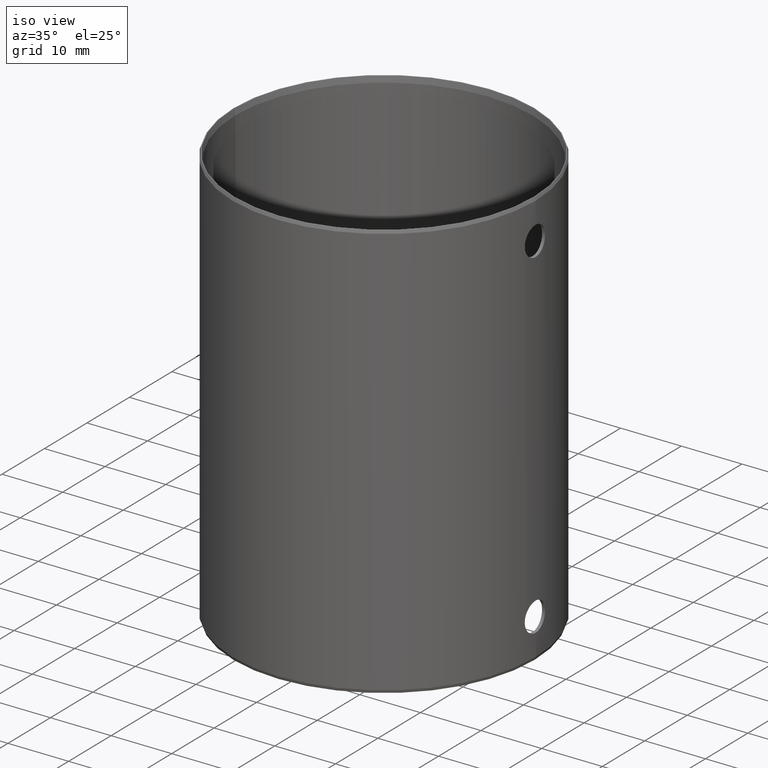
[diagram: clean part render]
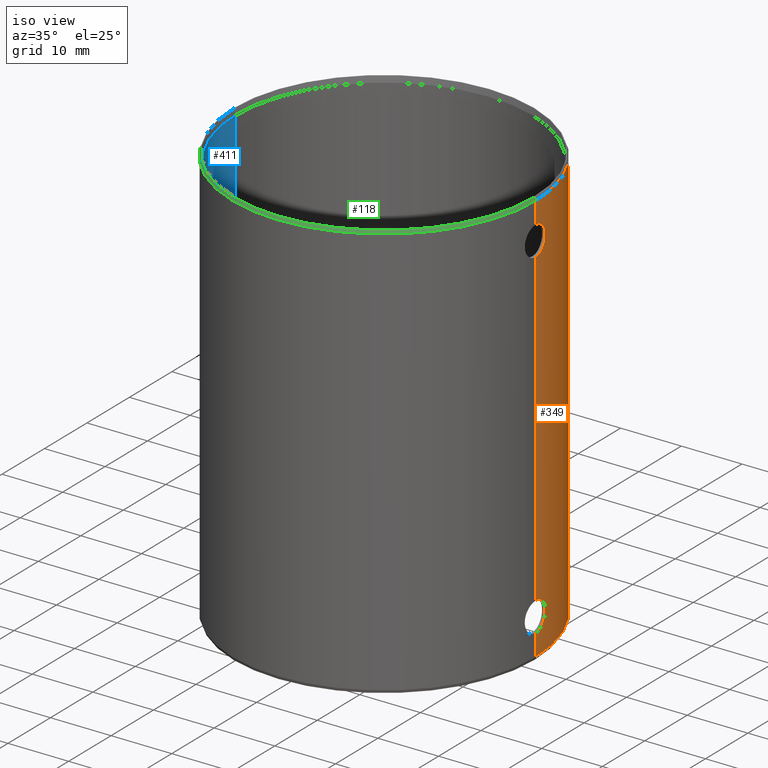
[diagram: same view with three faces highlighted in distinct colors, each labeled with its STEP entity id]
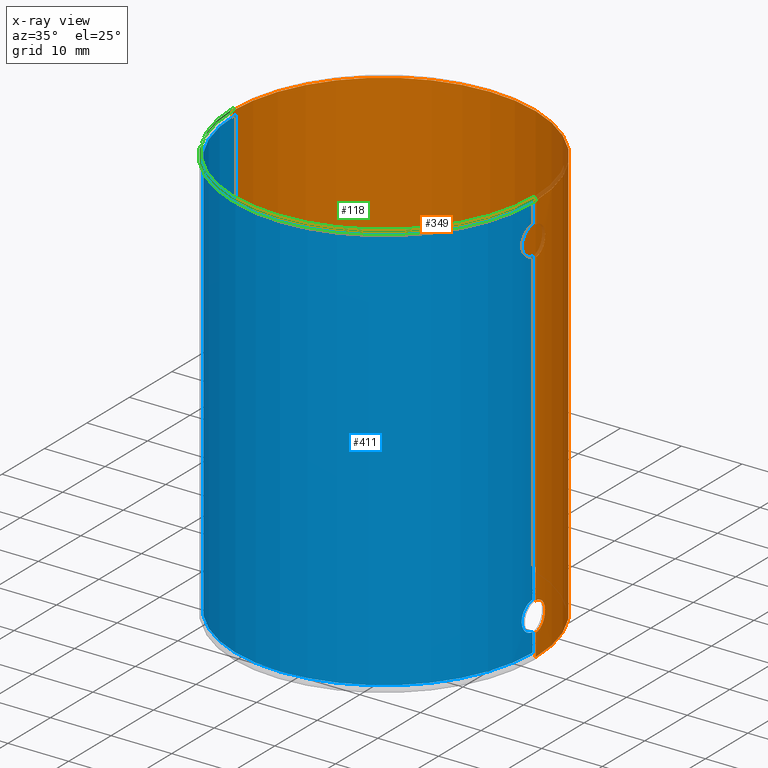
[diagram: x-ray of the same camera — body ghosted, the three highlighted faces saturated]
A machine part, iso view with three faces highlighted in distinct colors.
The next image is the same camera in x-ray (body ghosted, the three faces saturated) — at least one of them is partly hidden behind the body in this view.
Their STEP definitions:

[orange] entity #349 — the highlighted cylindrical surface (partial cylindrical patch) has radius 25 mm, axis along (-0, -0, -1).
#18 = CIRCLE ( 'NONE', #264, 25.00000000000000000 ) ;
#24 = CARTESIAN_POINT ( 'NONE',  ( 24.99852779915536900, 0.3123910132532942100, 4.115188051431481100 ) ) ;
#26 = CARTESIAN_POINT ( 'NONE',  ( 24.88452160933722700, 2.400121723904763600, 6.656665862864441500 ) ) ;
#31 = CARTESIAN_POINT ( 'NONE',  ( 24.92724166081458700, 1.907948605378058800, 5.035650817317736600 ) ) ;
#33 = CARTESIAN_POINT ( 'NONE',  ( 25.00000000000000000, 3.061617015060971000E-015, 60.10000000000000100 ) ) ;
#38 = CARTESIAN_POINT ( 'NONE',  ( 24.97770563932994000, 1.065398454173686100, 8.656234646903758500 ) ) ;
#39 = CARTESIAN_POINT ( 'NONE',  ( 24.91328647539418000, 2.082258795720676400, 61.29634526660252900 ) ) ;
#45 = CARTESIAN_POINT ( 'NONE',  ( 0.0000000000000000000, 0.0000000000000000000, 0.4999999999999726900 ) ) ;
#57 = VECTOR ( 'NONE', #728, 1000.000000000000000 ) ;
#60 = CARTESIAN_POINT ( 'NONE',  ( 25.00000000000000000, -7.960204194457795500E-016, 8.900000000000000400 ) ) ;
#70 = VERTEX_POINT ( 'NONE', #60 ) ;
#89 = CARTESIAN_POINT ( 'NONE',  ( 24.90680033869109900, 2.157531980925978800, 7.562927324292854100 ) ) ;
#96 = CARTESIAN_POINT ( 'NONE',  ( 24.89619328610674400, 2.276670028200189900, 61.72444238341019200 ) ) ;
#111 = DIRECTION ( 'NONE',  ( 1.000000000000000000, 0.0000000000000000000, 0.0000000000000000000 ) ) ;
#135 = CARTESIAN_POINT ( 'NONE',  ( 24.93488666603596100, 1.806581411025498500, 4.912317553406793100 ) ) ;
#142 = CARTESIAN_POINT ( 'NONE',  ( 24.99273967167542700, 0.6220482088764666100, 4.176646346112978100 ) ) ;
#148 = CARTESIAN_POINT ( 'NONE',  ( 24.88602797503628800, 2.384647443085708800, 62.81291804850886300 ) ) ;
#150 = CARTESIAN_POINT ( 'NONE',  ( 24.89185976614051700, 2.322985733890047500, 61.87694049442362900 ) ) ;
#168 = CARTESIAN_POINT ( 'NONE',  ( 24.91314775540727300, 2.083908987949354000, 63.70078858769549900 ) ) ;
#185 = CARTESIAN_POINT ( 'NONE',  ( 24.88452160933723100, 2.400121723904757900, 62.65666586286443600 ) ) ;
#188 = CARTESIAN_POINT ( 'NONE',  ( 24.88602797503628800, 2.384647443085714500, 6.812918048508857200 ) ) ;
#193 = CARTESIAN_POINT ( 'NONE',  ( 24.97128641964937400, 1.205016375846084600, 8.581538389534465200 ) ) ;
#195 = EDGE_CURVE ( 'NONE', #506, #440, #301, .T. ) ;
#202 = ORIENTED_EDGE ( 'NONE', *, *, #238, .F. ) ;
#207 = EDGE_CURVE ( 'NONE', #361, #552, #535, .T. ) ;
#208 = FACE_OUTER_BOUND ( 'NONE', #234, .T. ) ;
#213 = CARTESIAN_POINT ( 'NONE',  ( 25.00000000000000000, 3.061616997868383000E-015, 69.00000000000000000 ) ) ;
#223 = VERTEX_POINT ( 'NONE', #33 ) ;
#225 = CARTESIAN_POINT ( 'NONE',  ( 24.92708216892714300, 1.910021543429558900, 63.96163867150225700 ) ) ;
#231 = CARTESIAN_POINT ( 'NONE',  ( 24.97128641964937400, 1.205016375846076800, 64.58153838953445800 ) ) ;
#234 = EDGE_LOOP ( 'NONE', ( #353, #673, #369, #533, #202, #341, #263, #529 ) ) ;
#236 = CARTESIAN_POINT ( 'NONE',  ( 24.93472474480771000, 1.808807287848826600, 64.08515009080852600 ) ) ;
#238 = EDGE_CURVE ( 'NONE', #361, #70, #694, .T. ) ;
#239 = DIRECTION ( 'NONE',  ( -1.000000000000000000, 0.0000000000000000000, 0.0000000000000000000 ) ) ;
#249 = CARTESIAN_POINT ( 'NONE',  ( 24.89177715393288200, 2.323867879430600700, 7.119757381439341300 ) ) ;
#257 = CARTESIAN_POINT ( 'NONE',  ( 24.92708216892713900, 1.910021543429563300, 7.961638671502244700 ) ) ;
#263 = ORIENTED_EDGE ( 'NONE', *, *, #469, .T. ) ;
#264 = AXIS2_PLACEMENT_3D ( 'NONE', #461, #466, #725 ) ;
#269 = CARTESIAN_POINT ( 'NONE',  ( 25.00000000000000000, 3.061616997868383000E-015, 0.4999999999999726900 ) ) ;
#270 = CARTESIAN_POINT ( 'NONE',  ( 25.00000000000000000, 3.061616997868383000E-015, 69.00000000000000000 ) ) ;
#276 = EDGE_CURVE ( 'NONE', #223, #406, #448, .T. ) ;
#301 = LINE ( 'NONE', #449, #430 ) ;
#305 = CARTESIAN_POINT ( 'NONE',  ( 25.00000000000000000, -6.938893903907228400E-015, 64.90000000000000600 ) ) ;
#324 = CARTESIAN_POINT ( 'NONE',  ( 24.99366688715195700, 0.6324768918812916400, 8.836163490830976700 ) ) ;
#327 = CARTESIAN_POINT ( 'NONE',  ( 24.98844668141205700, 0.7735741257863489900, 60.22271791991430200 ) ) ;
#329 = CARTESIAN_POINT ( 'NONE',  ( 24.99999999999998900, 0.3172695563085066700, 8.899999999999996800 ) ) ;
#331 = CARTESIAN_POINT ( 'NONE',  ( 25.00000000000000000, 3.061617015060971000E-015, 60.10000000000000100 ) ) ;
#341 = ORIENTED_EDGE ( 'NONE', *, *, #207, .T. ) ;
#343 = CARTESIAN_POINT ( 'NONE',  ( -25.00000000000000000, 0.0000000000000000000, 0.4999999999999726900 ) ) ;
#346 = CARTESIAN_POINT ( 'NONE',  ( 25.00000000000000000, 3.061616997868383000E-015, 68.50000000000002800 ) ) ;
#347 = DIRECTION ( 'NONE',  ( -0.0000000000000000000, -0.0000000000000000000, 1.000000000000000000 ) ) ;
#349 = ADVANCED_FACE ( 'NONE', ( #208 ), #405, .T. ) ;
#353 = ORIENTED_EDGE ( 'NONE', *, *, #532, .T. ) ;
#358 = AXIS2_PLACEMENT_3D ( 'NONE', #45, #347, #111 ) ;
#361 = VERTEX_POINT ( 'NONE', #756 ) ;
#364 = CARTESIAN_POINT ( 'NONE',  ( 24.89608564858516400, 2.277842562262350200, 63.27213470780221600 ) ) ;
#369 = ORIENTED_EDGE ( 'NONE', *, *, #276, .F. ) ;
#376 = CIRCLE ( 'NONE', #358, 25.00000000000000000 ) ;
#379 = CARTESIAN_POINT ( 'NONE',  ( 25.00000000000000400, 0.1566443434529316300, 4.099999999999998800 ) ) ;
#380 = CARTESIAN_POINT ( 'NONE',  ( 24.89185976614051300, 2.322985733890050600, 5.876940494423617900 ) ) ;
#383 = DIRECTION ( 'NONE',  ( -0.0000000000000000000, -0.0000000000000000000, -1.000000000000000000 ) ) ;
#390 = CARTESIAN_POINT ( 'NONE',  ( 25.00000000000000000, 3.061616997868383000E-015, 69.00000000000000000 ) ) ;
#396 = CARTESIAN_POINT ( 'NONE',  ( 24.95746531117464100, 1.474504327697439000, 60.58069680062431700 ) ) ;
#398 = CARTESIAN_POINT ( 'NONE',  ( 24.88454522685664800, 2.399876844268713100, 62.33962664033745700 ) ) ;
#405 = CYLINDRICAL_SURFACE ( 'NONE', #760, 25.00000000000000000 ) ;
#406 = VERTEX_POINT ( 'NONE', #305 ) ;
#418 = CARTESIAN_POINT ( 'NONE',  ( 25.00000000000000000, -6.938893903907228400E-015, 64.90000000000000600 ) ) ;
#422 = CARTESIAN_POINT ( 'NONE',  ( 24.94978116682852900, 1.587671764335767000, 64.30659430523188300 ) ) ;
#425 = DIRECTION ( 'NONE',  ( -0.0000000000000000000, -0.0000000000000000000, -1.000000000000000000 ) ) ;
#428 = CARTESIAN_POINT ( 'NONE',  ( 24.95726503561599700, 1.467014608053332600, 64.40597341873413500 ) ) ;
#430 = VECTOR ( 'NONE', #772, 1000.000000000000000 ) ;
#436 = CARTESIAN_POINT ( 'NONE',  ( 24.97252710090108600, 1.206825632060222200, 4.402073810815897700 ) ) ;
#437 = EDGE_CURVE ( 'NONE', #766, #406, #765, .T. ) ;
#440 = VERTEX_POINT ( 'NONE', #343 ) ;
#445 = CARTESIAN_POINT ( 'NONE',  ( 24.89608564858515600, 2.277842562262359900, 7.272134707802201200 ) ) ;
#448 = B_SPLINE_CURVE_WITH_KNOTS ( 'NONE', 3,
 ( #331, #451, #719, #587, #327, #778, #396, #522, #655, #39, #456, #96, #150, #590, #398, #185, #148, #779, #364, #746, #168, #225, #236, #422, #428, #231, #744, #559, #629, #418 ),
 .UNSPECIFIED., .F., .F.,
 ( 4, 2, 2, 2, 2, 2, 2, 2, 2, 2, 2, 2, 2, 2, 4 ),
 ( 0.007507814595347489900, 0.007976943279591804800, 0.008446071963836119700, 0.009384329332324740900, 0.009853458016569043700, 0.01032258670081334700, 0.01079171538505764900, 0.01126084406930195200, 0.01172997275354625500, 0.01219910143779055800, 0.01266823012203486200, 0.01313735880627916500, 0.01360648749052346800, 0.01407561617476777200, 0.01501387354325637800 ),
 .UNSPECIFIED. ) ;
#449 = CARTESIAN_POINT ( 'NONE',  ( -25.00000000000000000, 0.0000000000000000000, 69.00000000000000000 ) ) ;
#451 = CARTESIAN_POINT ( 'NONE',  ( 25.00000000000000400, 0.1566443434529314100, 60.09999999999999400 ) ) ;
#452 = CARTESIAN_POINT ( 'NONE',  ( 24.94978116682852600, 1.587671764335780300, 8.306594305231847400 ) ) ;
#453 = VECTOR ( 'NONE', #665, 1000.000000000000000 ) ;
#456 = CARTESIAN_POINT ( 'NONE',  ( 24.90692968817593600, 2.156042686208175900, 61.43407506399196200 ) ) ;
#461 = CARTESIAN_POINT ( 'NONE',  ( 0.0000000000000000000, 0.0000000000000000000, 68.50000000000002800 ) ) ;
#466 = DIRECTION ( 'NONE',  ( 0.0000000000000000000, 0.0000000000000000000, -1.000000000000000000 ) ) ;
#469 = EDGE_CURVE ( 'NONE', #552, #440, #376, .T. ) ;
#471 = CARTESIAN_POINT ( 'NONE',  ( -25.00000000000000000, 0.0000000000000000000, 68.50000000000002800 ) ) ;
#506 = VERTEX_POINT ( 'NONE', #471 ) ;
#507 = CARTESIAN_POINT ( 'NONE',  ( 24.95746531117462700, 1.474504327697435400, 4.580696800624287400 ) ) ;
#511 = CARTESIAN_POINT ( 'NONE',  ( 24.91328647539417300, 2.082258795720679500, 5.296345266602520100 ) ) ;
#518 = LINE ( 'NONE', #270, #57 ) ;
#522 = CARTESIAN_POINT ( 'NONE',  ( 24.93488666603596100, 1.806581411025500700, 60.91231755340679400 ) ) ;
#523 = CARTESIAN_POINT ( 'NONE',  ( 24.93472474480770600, 1.808807287848838200, 8.085150090808488300 ) ) ;
#529 = ORIENTED_EDGE ( 'NONE', *, *, #195, .F. ) ;
#532 = EDGE_CURVE ( 'NONE', #506, #766, #18, .T. ) ;
#533 = ORIENTED_EDGE ( 'NONE', *, *, #696, .T. ) ;
#535 = LINE ( 'NONE', #390, #794 ) ;
#552 = VERTEX_POINT ( 'NONE', #269 ) ;
#557 = CARTESIAN_POINT ( 'NONE',  ( 0.0000000000000000000, 0.0000000000000000000, 69.00000000000000000 ) ) ;
#559 = CARTESIAN_POINT ( 'NONE',  ( 24.99366688715195300, 0.6324768918812896400, 64.83616349083098400 ) ) ;
#575 = CARTESIAN_POINT ( 'NONE',  ( 24.90692968817593200, 2.156042686208177200, 5.434075063991946000 ) ) ;
#578 = CARTESIAN_POINT ( 'NONE',  ( 24.98844668141205400, 0.7735741257863501000, 4.222717919914306800 ) ) ;
#587 = CARTESIAN_POINT ( 'NONE',  ( 24.99273967167542000, 0.6220482088764672800, 60.17664634611295300 ) ) ;
#590 = CARTESIAN_POINT ( 'NONE',  ( 24.88607061142255400, 2.384205289053846300, 62.18372321142167200 ) ) ;
#629 = CARTESIAN_POINT ( 'NONE',  ( 24.99999999999999300, 0.3172695563085008400, 64.89999999999999100 ) ) ;
#642 = CARTESIAN_POINT ( 'NONE',  ( 24.89619328610674700, 2.276670028200192200, 5.724442383410184300 ) ) ;
#652 = CARTESIAN_POINT ( 'NONE',  ( 24.91314775540727300, 2.083908987949359700, 7.700788587695509300 ) ) ;
#655 = CARTESIAN_POINT ( 'NONE',  ( 24.92724166081459100, 1.907948605378055900, 61.03565081731775200 ) ) ;
#665 = DIRECTION ( 'NONE',  ( -0.0000000000000000000, -0.0000000000000000000, -1.000000000000000000 ) ) ;
#673 = ORIENTED_EDGE ( 'NONE', *, *, #437, .T. ) ;
#694 = B_SPLINE_CURVE_WITH_KNOTS ( 'NONE', 3,
 ( #761, #379, #24, #142, #578, #436, #507, #135, #31, #511, #575, #642, #380, #705, #763, #26, #188, #249, #445, #89, #652, #257, #523, #452, #716, #193, #38, #324, #329, #775 ),
 .UNSPECIFIED., .F., .F.,
 ( 4, 2, 2, 2, 2, 2, 2, 2, 2, 2, 2, 2, 2, 2, 4 ),
 ( 0.007507814595347481200, 0.007976943279591787500, 0.008446071963836093700, 0.009384329332324706200, 0.009853458016569010800, 0.01032258670081331500, 0.01079171538505762000, 0.01126084406930192400, 0.01172997275354623100, 0.01219910143779053300, 0.01266823012203484000, 0.01313735880627914200, 0.01360648749052344700, 0.01407561617476775100, 0.01501387354325635700 ),
 .UNSPECIFIED. ) ;
#696 = EDGE_CURVE ( 'NONE', #223, #70, #518, .T. ) ;
#705 = CARTESIAN_POINT ( 'NONE',  ( 24.88607061142256400, 2.384205289053852500, 6.183723211421667400 ) ) ;
#716 = CARTESIAN_POINT ( 'NONE',  ( 24.95726503561599700, 1.467014608053339700, 8.405973418734134800 ) ) ;
#719 = CARTESIAN_POINT ( 'NONE',  ( 24.99852779915536500, 0.3123910132532947100, 60.11518805143146700 ) ) ;
#725 = DIRECTION ( 'NONE',  ( 1.000000000000000000, 0.0000000000000000000, 0.0000000000000000000 ) ) ;
#728 = DIRECTION ( 'NONE',  ( -0.0000000000000000000, -0.0000000000000000000, -1.000000000000000000 ) ) ;
#744 = CARTESIAN_POINT ( 'NONE',  ( 24.97770563932994000, 1.065398454173683200, 64.65623464690375500 ) ) ;
#746 = CARTESIAN_POINT ( 'NONE',  ( 24.90680033869110200, 2.157531980925967200, 63.56292732429286500 ) ) ;
#756 = CARTESIAN_POINT ( 'NONE',  ( 25.00000000000000000, 3.061617015062548800E-015, 4.099999999999999600 ) ) ;
#760 = AXIS2_PLACEMENT_3D ( 'NONE', #557, #425, #239 ) ;
#761 = CARTESIAN_POINT ( 'NONE',  ( 25.00000000000000000, 3.061617015062548800E-015, 4.099999999999999600 ) ) ;
#763 = CARTESIAN_POINT ( 'NONE',  ( 24.88454522685665200, 2.399876844268717900, 6.339626640337451500 ) ) ;
#765 = LINE ( 'NONE', #213, #453 ) ;
#766 = VERTEX_POINT ( 'NONE', #346 ) ;
#772 = DIRECTION ( 'NONE',  ( -0.0000000000000000000, -0.0000000000000000000, -1.000000000000000000 ) ) ;
#775 = CARTESIAN_POINT ( 'NONE',  ( 25.00000000000000000, -7.960204194457795500E-016, 8.900000000000000400 ) ) ;
#778 = CARTESIAN_POINT ( 'NONE',  ( 24.97252710090109000, 1.206825632060220600, 60.40207381081591400 ) ) ;
#779 = CARTESIAN_POINT ( 'NONE',  ( 24.89177715393287500, 2.323867879430594500, 63.11975738143934900 ) ) ;
#794 = VECTOR ( 'NONE', #383, 1000.000000000000000 ) ;

[blue] entity #411 — the highlighted cylindrical surface (partial cylindrical patch) has radius 24.5 mm, axis along (-0, -0, -1).
#3 = CARTESIAN_POINT ( 'NONE',  ( 24.42580354938601100, -1.907319449440138600, 7.965276881055341800 ) ) ;
#4 = EDGE_CURVE ( 'NONE', #658, #528, #501, .T. ) ;
#5 = VECTOR ( 'NONE', #476, 1000.000000000000000 ) ;
#9 = CARTESIAN_POINT ( 'NONE',  ( 24.38859995734895500, -2.336800860100901400, 7.130151552191206200 ) ) ;
#11 = CARTESIAN_POINT ( 'NONE',  ( 24.47082005790156200, -1.202507692141337600, 64.58292347193727800 ) ) ;
#12 = CARTESIAN_POINT ( 'NONE',  ( 24.45660832682248700, -1.463341451696374300, 64.40872384994622700 ) ) ;
#15 = CARTESIAN_POINT ( 'NONE',  ( 24.49844755136555500, -0.3158348504575804700, 60.11570415887334200 ) ) ;
#17 = EDGE_CURVE ( 'NONE', #528, #645, #641, .T. ) ;
#19 = VERTEX_POINT ( 'NONE', #29 ) ;
#29 = CARTESIAN_POINT ( 'NONE',  ( -24.50000000000000000, 0.0000000000000000000, 1.000000000000042600 ) ) ;
#44 = CARTESIAN_POINT ( 'NONE',  ( 24.50000000000000000, 3.000384657911015500E-015, 69.00000000000000000 ) ) ;
#50 = DIRECTION ( 'NONE',  ( 1.000000000000000000, 0.0000000000000000000, 0.0000000000000000000 ) ) ;
#52 = CARTESIAN_POINT ( 'NONE',  ( 24.50000000000000000, 3.000384657911015500E-015, 68.00000000000015600 ) ) ;
#53 = CARTESIAN_POINT ( 'NONE',  ( -24.50000000000000000, 0.0000000000000000000, 68.00000000000015600 ) ) ;
#54 = CARTESIAN_POINT ( 'NONE',  ( 24.50000000000000000, -7.960204194457795500E-016, 8.900000000000000400 ) ) ;
#61 = CARTESIAN_POINT ( 'NONE',  ( 24.41146949563054100, -2.082763447756365200, 7.702913230893200200 ) ) ;
#64 = CARTESIAN_POINT ( 'NONE',  ( 24.38859995734896600, -2.336800860100908500, 63.13015155219122200 ) ) ;
#66 = CARTESIAN_POINT ( 'NONE',  ( 24.49254669009270200, -0.6235709369443246400, 60.17711868633463000 ) ) ;
#72 = CARTESIAN_POINT ( 'NONE',  ( 24.41146949563054500, -2.082763447756369200, 63.70291323089320900 ) ) ;
#82 = ORIENTED_EDGE ( 'NONE', *, *, #517, .T. ) ;
#90 = CARTESIAN_POINT ( 'NONE',  ( 24.41150751000920800, -2.082281741112948800, 5.296445418222805100 ) ) ;
#105 = DIRECTION ( 'NONE',  ( -0.0000000000000000000, -0.0000000000000000000, -1.000000000000000000 ) ) ;
#109 = CARTESIAN_POINT ( 'NONE',  ( 24.50000000000000000, 3.000384657911015500E-015, 69.00000000000000000 ) ) ;
#112 = EDGE_LOOP ( 'NONE', ( #458, #82, #344, #498, #562, #595, #268, #133 ) ) ;
#125 = CARTESIAN_POINT ( 'NONE',  ( 24.42570443494877700, -1.908548929719064100, 61.03648304978811000 ) ) ;
#127 = CARTESIAN_POINT ( 'NONE',  ( 24.49259480514857400, -0.6215738987710169900, 64.82338609290462700 ) ) ;
#131 = EDGE_CURVE ( 'NONE', #302, #325, #224, .T. ) ;
#132 = VECTOR ( 'NONE', #671, 1000.000000000000000 ) ;
#133 = ORIENTED_EDGE ( 'NONE', *, *, #787, .F. ) ;
#143 = CARTESIAN_POINT ( 'NONE',  ( 24.49254669009269500, -0.6235709369443240800, 4.177118686334628400 ) ) ;
#145 = CARTESIAN_POINT ( 'NONE',  ( 24.42570443494878800, -1.908548929719057200, 5.036483049788117200 ) ) ;
#173 = CARTESIAN_POINT ( 'NONE',  ( 24.43335481541210900, -1.809360301352433300, 60.91528340492516900 ) ) ;
#177 = CARTESIAN_POINT ( 'NONE',  ( 24.50000000000000000, -0.1586759503832634300, 64.90000000000002000 ) ) ;
#190 = CARTESIAN_POINT ( 'NONE',  ( 24.38963235678006900, -2.323097617441011800, 5.877218032983101600 ) ) ;
#221 = CARTESIAN_POINT ( 'NONE',  ( 24.45660832682250100, -1.463341451696367900, 8.408723849946225600 ) ) ;
#224 = B_SPLINE_CURVE_WITH_KNOTS ( 'NONE', 3,
 ( #297, #177, #628, #127, #227, #565, #11, #12, #235, #625, #753, #72, #293, #64, #556, #488, #621, #288, #424, #492, #558, #125, #173, #561, #692, #230, #365, #368, #66, #15, #495, #363 ),
 .UNSPECIFIED., .F., .F.,
 ( 4, 2, 2, 2, 2, 2, 2, 2, 2, 2, 2, 2, 2, 2, 2, 4 ),
 ( 0.0000000000000000000, 0.0004692495845450792600, 0.0009384991690901587300, 0.001407748753635238100, 0.001876998338180317900, 0.002346247922725397000, 0.002815497507270476200, 0.003753996676360634900, 0.004223246260905714500, 0.004692495845450793200, 0.005161745429995872800, 0.005630995014540951500, 0.006100244599086031100, 0.006569494183631110700, 0.007038743768176189400, 0.007507993352721268100 ),
 .UNSPECIFIED. ) ;
#227 = CARTESIAN_POINT ( 'NONE',  ( 24.48820078453336200, -0.7740593033462914700, 64.77718672583307600 ) ) ;
#230 = CARTESIAN_POINT ( 'NONE',  ( 24.47073192606200800, -1.204247393120301500, 60.41812067930364100 ) ) ;
#232 = LINE ( 'NONE', #44, #132 ) ;
#235 = CARTESIAN_POINT ( 'NONE',  ( 24.44881354310747700, -1.586761734104943100, 64.30739358407541300 ) ) ;
#237 = AXIS2_PLACEMENT_3D ( 'NONE', #375, #429, #499 ) ;
#256 = CARTESIAN_POINT ( 'NONE',  ( 24.47732152897452500, -1.063902268404216300, 4.342949835593287000 ) ) ;
#268 = ORIENTED_EDGE ( 'NONE', *, *, #362, .T. ) ;
#272 = CARTESIAN_POINT ( 'NONE',  ( 0.0000000000000000000, 0.0000000000000000000, 68.00000000000015600 ) ) ;
#280 = CARTESIAN_POINT ( 'NONE',  ( 24.49845975203917400, -0.3146810743289630800, 8.884418769804302200 ) ) ;
#283 = CARTESIAN_POINT ( 'NONE',  ( 24.44881354310748700, -1.586761734104935200, 8.307393584075436300 ) ) ;
#288 = CARTESIAN_POINT ( 'NONE',  ( 24.38963235678005500, -2.323097617441018500, 61.87721803298310200 ) ) ;
#293 = CARTESIAN_POINT ( 'NONE',  ( 24.40491494433868200, -2.157252441054829700, 63.56334106249468600 ) ) ;
#295 = AXIS2_PLACEMENT_3D ( 'NONE', #374, #300, #568 ) ;
#297 = CARTESIAN_POINT ( 'NONE',  ( 24.50000000000000000, -6.938893903907228400E-015, 64.90000000000000600 ) ) ;
#299 = VECTOR ( 'NONE', #105, 1000.000000000000000 ) ;
#300 = DIRECTION ( 'NONE',  ( -0.0000000000000000000, -0.0000000000000000000, -1.000000000000000000 ) ) ;
#302 = VERTEX_POINT ( 'NONE', #691 ) ;
#307 = CARTESIAN_POINT ( 'NONE',  ( 24.50000000000000000, 3.000384657911015500E-015, 69.00000000000000000 ) ) ;
#309 = LINE ( 'NONE', #467, #5 ) ;
#322 = CARTESIAN_POINT ( 'NONE',  ( 24.50000000000000000, 3.000384675787022100E-015, 4.099999999999999600 ) ) ;
#325 = VERTEX_POINT ( 'NONE', #689 ) ;
#339 = CIRCLE ( 'NONE', #531, 24.50000000000000000 ) ;
#344 = ORIENTED_EDGE ( 'NONE', *, *, #131, .T. ) ;
#348 = CARTESIAN_POINT ( 'NONE',  ( 24.50000000000000000, 3.000384657911015500E-015, 1.000000000000042600 ) ) ;
#351 = CARTESIAN_POINT ( 'NONE',  ( 24.47082005790156200, -1.202507692141330500, 8.582923471937288400 ) ) ;
#356 = CARTESIAN_POINT ( 'NONE',  ( 24.43344847942907800, -1.808007707268007000, 8.086061946783996000 ) ) ;
#360 = CARTESIAN_POINT ( 'NONE',  ( 24.50000000000000000, -7.960204194457795500E-016, 8.900000000000000400 ) ) ;
#362 = EDGE_CURVE ( 'NONE', #645, #19, #757, .T. ) ;
#363 = CARTESIAN_POINT ( 'NONE',  ( 24.50000000000000000, 3.000384675787416500E-015, 60.10000000000000100 ) ) ;
#365 = CARTESIAN_POINT ( 'NONE',  ( 24.47732152897451700, -1.063902268404217400, 60.34294983559329500 ) ) ;
#368 = CARTESIAN_POINT ( 'NONE',  ( 24.48822829805678600, -0.7731960241527065000, 60.22251863745997700 ) ) ;
#374 = CARTESIAN_POINT ( 'NONE',  ( 0.0000000000000000000, 0.0000000000000000000, 1.000000000000042600 ) ) ;
#375 = CARTESIAN_POINT ( 'NONE',  ( 0.0000000000000000000, 0.0000000000000000000, 69.00000000000000000 ) ) ;
#387 = CARTESIAN_POINT ( 'NONE',  ( 24.44891537450626700, -1.585291533492605000, 4.691143416228797500 ) ) ;
#392 = CARTESIAN_POINT ( 'NONE',  ( 24.48822829805678600, -0.7731960241527060500, 4.222518637459985200 ) ) ;
#407 = DIRECTION ( 'NONE',  ( 0.0000000000000000000, 0.0000000000000000000, 1.000000000000000000 ) ) ;
#411 = ADVANCED_FACE ( 'NONE', ( #702 ), #721, .F. ) ;
#420 = CARTESIAN_POINT ( 'NONE',  ( 24.48820078453335800, -0.7740593033462839200, 8.777186725833065100 ) ) ;
#424 = CARTESIAN_POINT ( 'NONE',  ( 24.39396579814591300, -2.277735970484744900, 61.72756004712811500 ) ) ;
#429 = DIRECTION ( 'NONE',  ( -0.0000000000000000000, -0.0000000000000000000, -1.000000000000000000 ) ) ;
#444 = DIRECTION ( 'NONE',  ( -0.0000000000000000000, -0.0000000000000000000, -1.000000000000000000 ) ) ;
#447 = CARTESIAN_POINT ( 'NONE',  ( 24.39396579814591300, -2.277735970484741700, 5.727560047128107200 ) ) ;
#450 = CARTESIAN_POINT ( 'NONE',  ( 24.47073192606201500, -1.204247393120298200, 4.418120679303648000 ) ) ;
#458 = ORIENTED_EDGE ( 'NONE', *, *, #735, .T. ) ;
#467 = CARTESIAN_POINT ( 'NONE',  ( -24.50000000000000000, 0.0000000000000000000, 69.00000000000000000 ) ) ;
#476 = DIRECTION ( 'NONE',  ( -0.0000000000000000000, -0.0000000000000000000, -1.000000000000000000 ) ) ;
#482 = CARTESIAN_POINT ( 'NONE',  ( 24.40491494433868200, -2.157252441054823100, 7.563341062494688800 ) ) ;
#488 = CARTESIAN_POINT ( 'NONE',  ( 24.38216003775999500, -2.400056644397544400, 62.34422937983167400 ) ) ;
#492 = CARTESIAN_POINT ( 'NONE',  ( 24.40490035816057500, -2.157426017412178400, 61.43686425540956000 ) ) ;
#495 = CARTESIAN_POINT ( 'NONE',  ( 24.49999999999999300, -0.1566828476492581300, 60.09999999999999400 ) ) ;
#498 = ORIENTED_EDGE ( 'NONE', *, *, #774, .T. ) ;
#499 = DIRECTION ( 'NONE',  ( -1.000000000000000000, 0.0000000000000000000, 0.0000000000000000000 ) ) ;
#501 = B_SPLINE_CURVE_WITH_KNOTS ( 'NONE', 3,
 ( #360, #681, #280, #747, #420, #741, #351, #221, #283, #356, #3, #61, #482, #9, #555, #620, #516, #190, #447, #713, #90, #145, #521, #387, #650, #450, #256, #392, #143, #585, #771, #322 ),
 .UNSPECIFIED., .F., .F.,
 ( 4, 2, 2, 2, 2, 2, 2, 2, 2, 2, 2, 2, 2, 2, 2, 4 ),
 ( 0.0000000000000000000, 0.0004692495845450808300, 0.0009384991690901616600, 0.001407748753635242200, 0.001876998338180323300, 0.002346247922725404000, 0.002815497507270483100, 0.003753996676360638800, 0.004223246260905717100, 0.004692495845450795800, 0.005161745429995873700, 0.005630995014540950700, 0.006100244599086028500, 0.006569494183631106400, 0.007038743768176184200, 0.007507993352721261200 ),
 .UNSPECIFIED. ) ;
#516 = CARTESIAN_POINT ( 'NONE',  ( 24.38371308302083300, -2.384425575263693400, 6.185111774386615300 ) ) ;
#517 = EDGE_CURVE ( 'NONE', #740, #302, #232, .T. ) ;
#521 = CARTESIAN_POINT ( 'NONE',  ( 24.43335481541212000, -1.809360301352428900, 4.915283404925157000 ) ) ;
#528 = VERTEX_POINT ( 'NONE', #786 ) ;
#531 = AXIS2_PLACEMENT_3D ( 'NONE', #272, #407, #50 ) ;
#555 = CARTESIAN_POINT ( 'NONE',  ( 24.38217681132252300, -2.399886237811497600, 6.814152153041341400 ) ) ;
#556 = CARTESIAN_POINT ( 'NONE',  ( 24.38217681132252700, -2.399886237811506000, 62.81415215304134100 ) ) ;
#558 = CARTESIAN_POINT ( 'NONE',  ( 24.41150751000920500, -2.082281741112956400, 61.29644541822281000 ) ) ;
#561 = CARTESIAN_POINT ( 'NONE',  ( 24.44891537450626700, -1.585291533492609200, 60.69114341622880500 ) ) ;
#562 = ORIENTED_EDGE ( 'NONE', *, *, #4, .T. ) ;
#565 = CARTESIAN_POINT ( 'NONE',  ( 24.47728729338101100, -1.064684096812521100, 64.65666292299049200 ) ) ;
#568 = DIRECTION ( 'NONE',  ( 1.000000000000000000, 0.0000000000000000000, 0.0000000000000000000 ) ) ;
#585 = CARTESIAN_POINT ( 'NONE',  ( 24.49844755136555800, -0.3158348504575800300, 4.115704158873355400 ) ) ;
#593 = VERTEX_POINT ( 'NONE', #53 ) ;
#595 = ORIENTED_EDGE ( 'NONE', *, *, #17, .T. ) ;
#620 = CARTESIAN_POINT ( 'NONE',  ( 24.38216003776000200, -2.400056644397536400, 6.344229379831691800 ) ) ;
#621 = CARTESIAN_POINT ( 'NONE',  ( 24.38371308302084000, -2.384425575263701400, 62.18511177438661300 ) ) ;
#625 = CARTESIAN_POINT ( 'NONE',  ( 24.43344847942907800, -1.808007707268014700, 64.08606194678397100 ) ) ;
#628 = CARTESIAN_POINT ( 'NONE',  ( 24.49845975203917100, -0.3146810743289704100, 64.88441876980429900 ) ) ;
#633 = VECTOR ( 'NONE', #444, 1000.000000000000000 ) ;
#641 = LINE ( 'NONE', #307, #633 ) ;
#645 = VERTEX_POINT ( 'NONE', #348 ) ;
#650 = CARTESIAN_POINT ( 'NONE',  ( 24.45655955255350700, -1.464113258402906400, 4.591910469514345100 ) ) ;
#658 = VERTEX_POINT ( 'NONE', #54 ) ;
#671 = DIRECTION ( 'NONE',  ( -0.0000000000000000000, -0.0000000000000000000, -1.000000000000000000 ) ) ;
#681 = CARTESIAN_POINT ( 'NONE',  ( 24.50000000000000400, -0.1586759503832572400, 8.900000000000000400 ) ) ;
#689 = CARTESIAN_POINT ( 'NONE',  ( 24.50000000000000000, 3.000384675787416500E-015, 60.10000000000000100 ) ) ;
#691 = CARTESIAN_POINT ( 'NONE',  ( 24.50000000000000000, -6.938893903907228400E-015, 64.90000000000000600 ) ) ;
#692 = CARTESIAN_POINT ( 'NONE',  ( 24.45655955255350700, -1.464113258402910200, 60.59191046951436000 ) ) ;
#702 = FACE_OUTER_BOUND ( 'NONE', #112, .T. ) ;
#713 = CARTESIAN_POINT ( 'NONE',  ( 24.40490035816056400, -2.157426017412175300, 5.436864255409571600 ) ) ;
#721 = CYLINDRICAL_SURFACE ( 'NONE', #237, 24.50000000000000000 ) ;
#735 = EDGE_CURVE ( 'NONE', #593, #740, #339, .T. ) ;
#740 = VERTEX_POINT ( 'NONE', #52 ) ;
#741 = CARTESIAN_POINT ( 'NONE',  ( 24.47728729338100000, -1.064684096812513300, 8.656662922990468800 ) ) ;
#747 = CARTESIAN_POINT ( 'NONE',  ( 24.49259480514857000, -0.6215738987710095500, 8.823386092904598900 ) ) ;
#753 = CARTESIAN_POINT ( 'NONE',  ( 24.42580354938600700, -1.907319449440143100, 63.96527688105535200 ) ) ;
#757 = CIRCLE ( 'NONE', #295, 24.50000000000000000 ) ;
#771 = CARTESIAN_POINT ( 'NONE',  ( 24.50000000000000700, -0.1566828476492583000, 4.100000000000000500 ) ) ;
#774 = EDGE_CURVE ( 'NONE', #325, #658, #777, .T. ) ;
#777 = LINE ( 'NONE', #109, #299 ) ;
#786 = CARTESIAN_POINT ( 'NONE',  ( 24.50000000000000000, 3.000384675787022100E-015, 4.099999999999999600 ) ) ;
#787 = EDGE_CURVE ( 'NONE', #593, #19, #309, .T. ) ;

[green] entity #118 — the highlighted conical surface has half-angle 21.801 deg.
#21 = DIRECTION ( 'NONE',  ( -1.000000000000000000, 0.0000000000000000000, 0.0000000000000000000 ) ) ;
#43 = EDGE_CURVE ( 'NONE', #80, #766, #355, .T. ) ;
#51 = EDGE_CURVE ( 'NONE', #217, #80, #454, .T. ) ;
#59 = EDGE_LOOP ( 'NONE', ( #292, #191, #768, #484 ) ) ;
#80 = VERTEX_POINT ( 'NONE', #637 ) ;
#83 = EDGE_CURVE ( 'NONE', #217, #506, #183, .T. ) ;
#98 = VECTOR ( 'NONE', #530, 1000.000000000000000 ) ;
#118 = ADVANCED_FACE ( 'NONE', ( #504 ), #549, .T. ) ;
#139 = DIRECTION ( 'NONE',  ( 0.0000000000000000000, 0.0000000000000000000, -1.000000000000000000 ) ) ;
#144 = CARTESIAN_POINT ( 'NONE',  ( 0.0000000000000000000, 0.0000000000000000000, 68.50000000000002800 ) ) ;
#163 = EDGE_CURVE ( 'NONE', #766, #506, #333, .T. ) ;
#183 = LINE ( 'NONE', #784, #98 ) ;
#191 = ORIENTED_EDGE ( 'NONE', *, *, #51, .F. ) ;
#217 = VERTEX_POINT ( 'NONE', #759 ) ;
#254 = DIRECTION ( 'NONE',  ( 1.000000000000000000, 0.0000000000000000000, 0.0000000000000000000 ) ) ;
#292 = ORIENTED_EDGE ( 'NONE', *, *, #43, .F. ) ;
#315 = CARTESIAN_POINT ( 'NONE',  ( 0.0000000000000000000, 0.0000000000000000000, 69.00000000000000000 ) ) ;
#333 = CIRCLE ( 'NONE', #711, 25.00000000000000000 ) ;
#346 = CARTESIAN_POINT ( 'NONE',  ( 25.00000000000000000, 3.061616997868383000E-015, 68.50000000000002800 ) ) ;
#355 = LINE ( 'NONE', #770, #610 ) ;
#382 = DIRECTION ( 'NONE',  ( 0.0000000000000000000, 0.0000000000000000000, 1.000000000000000000 ) ) ;
#454 = CIRCLE ( 'NONE', #457, 24.80000000000001500 ) ;
#457 = AXIS2_PLACEMENT_3D ( 'NONE', #315, #382, #254 ) ;
#471 = CARTESIAN_POINT ( 'NONE',  ( -25.00000000000000000, 0.0000000000000000000, 68.50000000000002800 ) ) ;
#484 = ORIENTED_EDGE ( 'NONE', *, *, #163, .F. ) ;
#504 = FACE_OUTER_BOUND ( 'NONE', #59, .T. ) ;
#506 = VERTEX_POINT ( 'NONE', #471 ) ;
#530 = DIRECTION ( 'NONE',  ( -0.3713906763540970600, 0.0000000000000000000, -0.9284766908852619700 ) ) ;
#549 = CONICAL_SURFACE ( 'NONE', #672, 24.80000000000001500, 0.3805063771123576900 ) ;
#550 = DIRECTION ( 'NONE',  ( 0.0000000000000000000, 0.0000000000000000000, -1.000000000000000000 ) ) ;
#610 = VECTOR ( 'NONE', #776, 1000.000000000000000 ) ;
#636 = DIRECTION ( 'NONE',  ( 1.000000000000000000, 0.0000000000000000000, 0.0000000000000000000 ) ) ;
#637 = CARTESIAN_POINT ( 'NONE',  ( 24.80000000000001500, 3.049370529876910500E-015, 69.00000000000000000 ) ) ;
#647 = CARTESIAN_POINT ( 'NONE',  ( 0.0000000000000000000, 0.0000000000000000000, 69.00000000000000000 ) ) ;
#672 = AXIS2_PLACEMENT_3D ( 'NONE', #647, #550, #21 ) ;
#711 = AXIS2_PLACEMENT_3D ( 'NONE', #144, #139, #636 ) ;
#759 = CARTESIAN_POINT ( 'NONE',  ( -24.80000000000001500, 0.0000000000000000000, 69.00000000000000000 ) ) ;
#766 = VERTEX_POINT ( 'NONE', #346 ) ;
#768 = ORIENTED_EDGE ( 'NONE', *, *, #83, .T. ) ;
#770 = CARTESIAN_POINT ( 'NONE',  ( 24.80000000000001500, 3.037124061885437900E-015, 69.00000000000000000 ) ) ;
#776 = DIRECTION ( 'NONE',  ( 0.3713906763540970600, 4.548224030302155800E-017, -0.9284766908852619700 ) ) ;
#784 = CARTESIAN_POINT ( 'NONE',  ( -24.80000000000001500, 0.0000000000000000000, 69.00000000000000000 ) ) ;